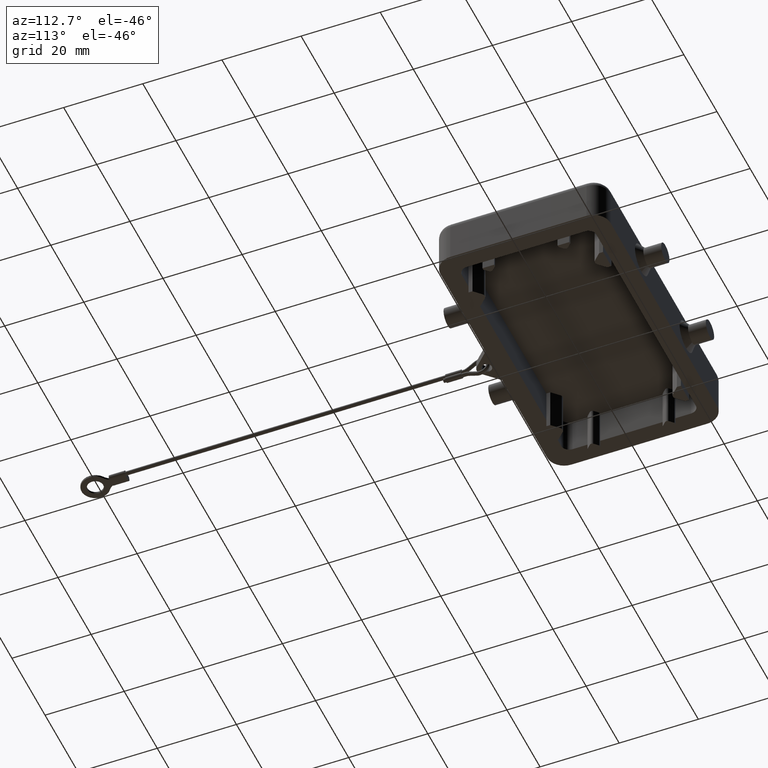
[diagram: clean part render]
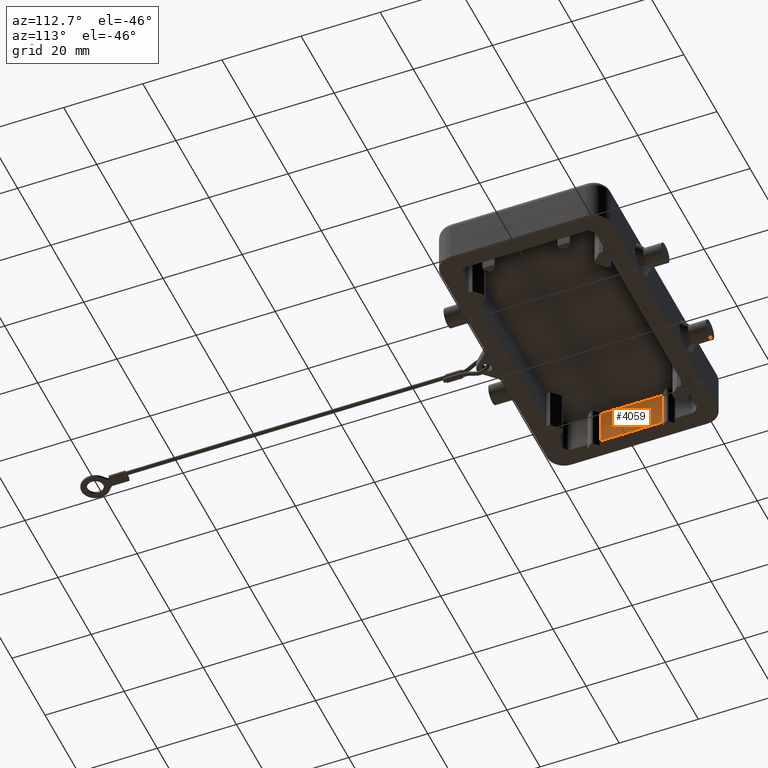
[diagram: same view with one face highlighted and labeled with its STEP entity id]
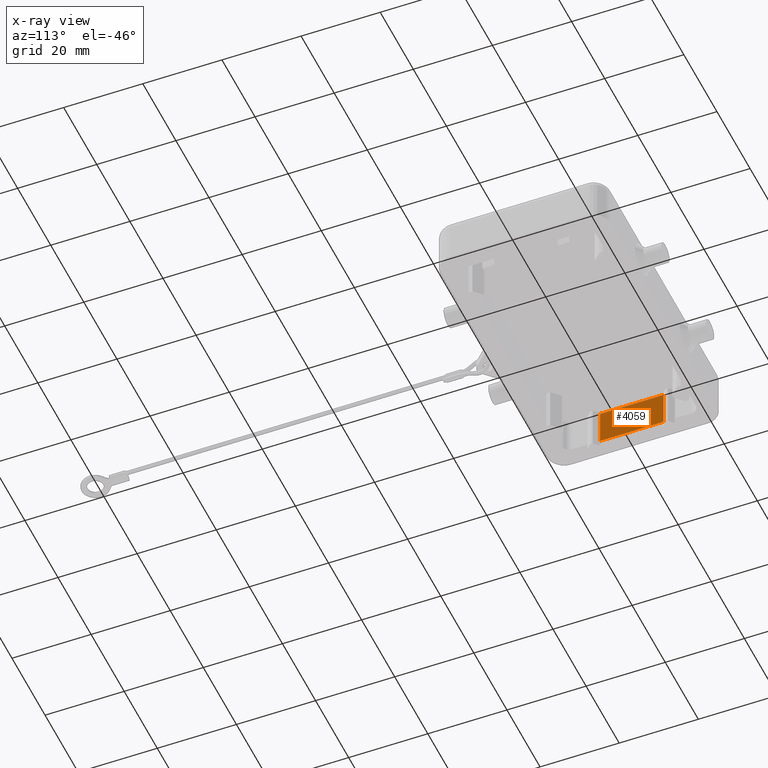
[diagram: x-ray of the same camera — body ghosted, the highlighted face saturated]
A machine part, auxiliary view. The second image highlights one B-rep face of the part: STEP entity #4059.
The next image is the same camera in x-ray: the body ghosted, the highlighted face saturated — about 0% of this face is hidden behind the body in this view.
In plain terms, the highlighted planar face has unit normal (-1, 0, 0).
Its self-contained STEP definition (entity closure, byte-faithful):
#3929=CARTESIAN_POINT('',(-32.0,7.999999999999996,9.0));
#3930=VERTEX_POINT('',#3929);
#3937=CARTESIAN_POINT('',(-32.000000000000007,7.999999999999996,0.0));
#3938=VERTEX_POINT('',#3937);
#3939=CARTESIAN_POINT('',(-32.000000000000007,7.999999999999996,0.0));
#3940=DIRECTION('',(0.0,0.0,1.0));
#3941=VECTOR('',#3940,9.0);
#3942=LINE('',#3939,#3941);
#3943=EDGE_CURVE('',#3938,#3930,#3942,.T.);
#4029=CARTESIAN_POINT('',(-32.0,-15.0,0.0));
#4030=DIRECTION('',(-1.0,0.0,0.0));
#4031=DIRECTION('',(0.0,0.0,1.0));
#4032=AXIS2_PLACEMENT_3D('',#4029,#4030,#4031);
#4033=PLANE('',#4032);
#4034=ORIENTED_EDGE('',*,*,#3943,.T.);
#4035=CARTESIAN_POINT('',(-32.0,-7.999999999999998,9.0));
#4036=VERTEX_POINT('',#4035);
#4037=CARTESIAN_POINT('',(-32.0,-7.999999999999998,9.0));
#4038=DIRECTION('',(0.0,1.0,0.0));
#4039=VECTOR('',#4038,15.999999999999995);
#4040=LINE('',#4037,#4039);
#4041=EDGE_CURVE('',#4036,#3930,#4040,.T.);
#4042=ORIENTED_EDGE('',*,*,#4041,.F.);
#4043=CARTESIAN_POINT('',(-32.0,-7.999999999999998,0.0));
#4044=VERTEX_POINT('',#4043);
#4045=CARTESIAN_POINT('',(-32.0,-7.999999999999998,9.0));
#4046=DIRECTION('',(0.0,0.0,-1.0));
#4047=VECTOR('',#4046,9.0);
#4048=LINE('',#4045,#4047);
#4049=EDGE_CURVE('',#4036,#4044,#4048,.T.);
#4050=ORIENTED_EDGE('',*,*,#4049,.T.);
#4051=CARTESIAN_POINT('',(-32.000000000000007,7.999999999999996,0.0));
#4052=DIRECTION('',(0.0,-1.0,0.0));
#4053=VECTOR('',#4052,15.999999999999995);
#4054=LINE('',#4051,#4053);
#4055=EDGE_CURVE('',#3938,#4044,#4054,.T.);
#4056=ORIENTED_EDGE('',*,*,#4055,.F.);
#4057=EDGE_LOOP('',(#4034,#4042,#4050,#4056));
#4058=FACE_OUTER_BOUND('',#4057,.T.);
#4059=ADVANCED_FACE('',(#4058),#4033,.F.);